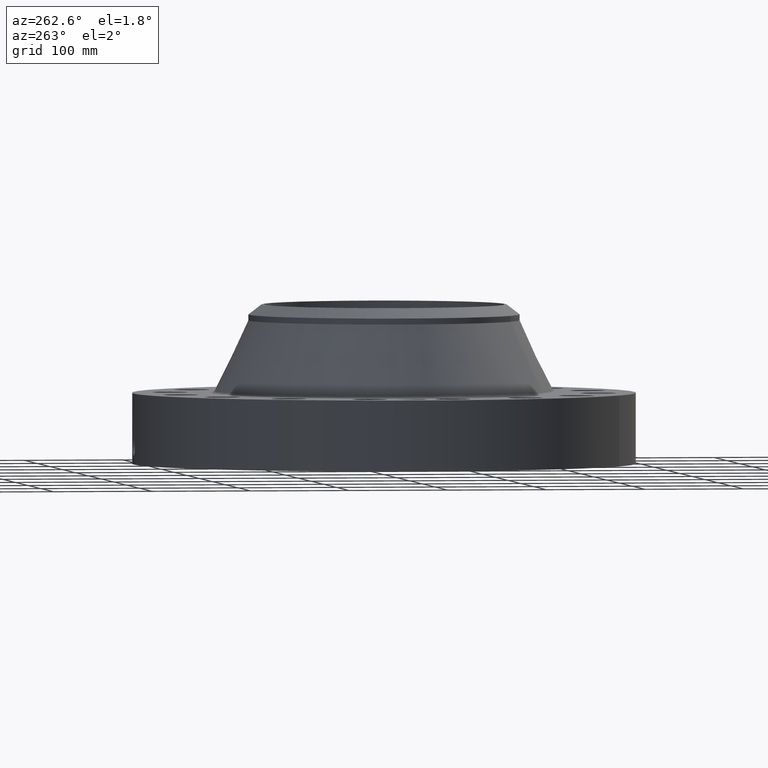
[diagram: clean part render]
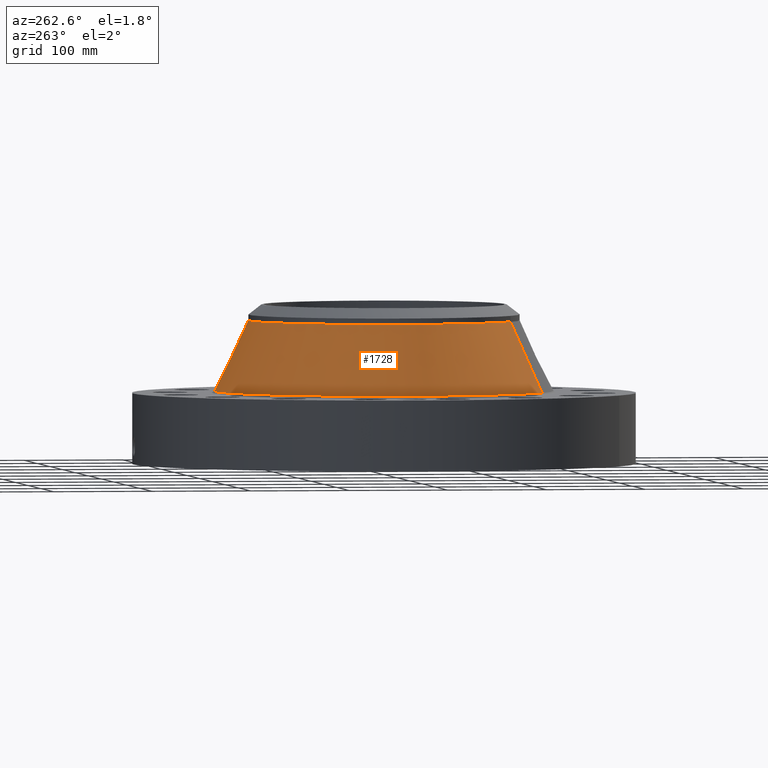
[diagram: same view with one face highlighted and labeled with its STEP entity id]
A machine part, auxiliary view. The second image highlights one B-rep face of the part: STEP entity #1728.
In plain terms, the highlighted conical surface has half-angle 25.611 deg.
Its self-contained STEP definition (entity closure, byte-faithful):
#1344=AXIS2_PLACEMENT_3D('Circle Axis2P3D',#1342,#1343,$) ;
#1701=AXIS2_PLACEMENT_3D('Cone Axis2P3D',#1698,#1699,#1700) ;
#1705=AXIS2_PLACEMENT_3D('Circle Axis2P3D',#1703,#1704,$) ;
#1339=CARTESIAN_POINT('Vertex',(2.57691227001,4.71700627018,5.6804067446)) ;
#1342=CARTESIAN_POINT('Axis2P3D Location',(0.,0.,5.6804067446)) ;
#1346=CARTESIAN_POINT('Vertex',(-2.57691227001,-4.71700627018,5.6804067446)) ;
#1698=CARTESIAN_POINT('Axis2P3D Location',(0.,0.,5.6804067446)) ;
#1703=CARTESIAN_POINT('Axis2P3D Location',(0.,0.,2.88012854824)) ;
#1707=CARTESIAN_POINT('Vertex',(-3.22046525181,-5.89502210163,2.88012854824)) ;
#1709=CARTESIAN_POINT('Vertex',(3.22046525181,5.89502210163,2.88012854824)) ;
#1712=CARTESIAN_POINT('Line Origine',(-2.89868876091,-5.30601418591,4.28026764642)) ;
#1717=CARTESIAN_POINT('Line Origine',(2.89868876091,5.30601418591,4.28026764642)) ;
#1343=DIRECTION('Axis2P3D Direction',(0.,0.,-0.0393700787402)) ;
#1699=DIRECTION('Axis2P3D Direction',(0.,0.,-0.0393700787402)) ;
#1700=DIRECTION('Axis2P3D XDirection',(0.0188750212049,0.0345504945626,0.)) ;
#1704=DIRECTION('Axis2P3D Direction',(0.,0.,-0.0393700787402)) ;
#1713=DIRECTION('Vector Direction',(-0.00815895626746,-0.0149348692696,-0.035501890267)) ;
#1718=DIRECTION('Vector Direction',(0.00815895626746,0.0149348692696,-0.035501890267)) ;
#1714=VECTOR('Line Direction',#1713,0.0393700787402) ;
#1719=VECTOR('Line Direction',#1718,0.0393700787402) ;
#1723=ORIENTED_EDGE('',*,*,#1711,.F.) ;
#1724=ORIENTED_EDGE('',*,*,#1716,.T.) ;
#1725=ORIENTED_EDGE('',*,*,#1348,.T.) ;
#1726=ORIENTED_EDGE('',*,*,#1721,.F.) ;
#1728=ADVANCED_FACE('PartBody',(#1727),#1702,.T.) ;
#1345=CIRCLE('generated circle',#1344,5.37500000002) ;
#1706=CIRCLE('generated circle',#1705,6.71734188625) ;
#1702=CONICAL_SURFACE('Cone',#1701,5.37500000002,0.446999843165) ;
#1348=EDGE_CURVE('',#1347,#1340,#1345,.T.) ;
#1711=EDGE_CURVE('',#1708,#1710,#1706,.T.) ;
#1716=EDGE_CURVE('',#1708,#1347,#1715,.F.) ;
#1721=EDGE_CURVE('',#1710,#1340,#1720,.F.) ;
#1722=EDGE_LOOP('',(#1723,#1724,#1725,#1726)) ;
#1727=FACE_OUTER_BOUND('',#1722,.T.) ;
#1715=LINE('Line',#1712,#1714) ;
#1720=LINE('Line',#1717,#1719) ;
#1340=VERTEX_POINT('',#1339) ;
#1347=VERTEX_POINT('',#1346) ;
#1708=VERTEX_POINT('',#1707) ;
#1710=VERTEX_POINT('',#1709) ;